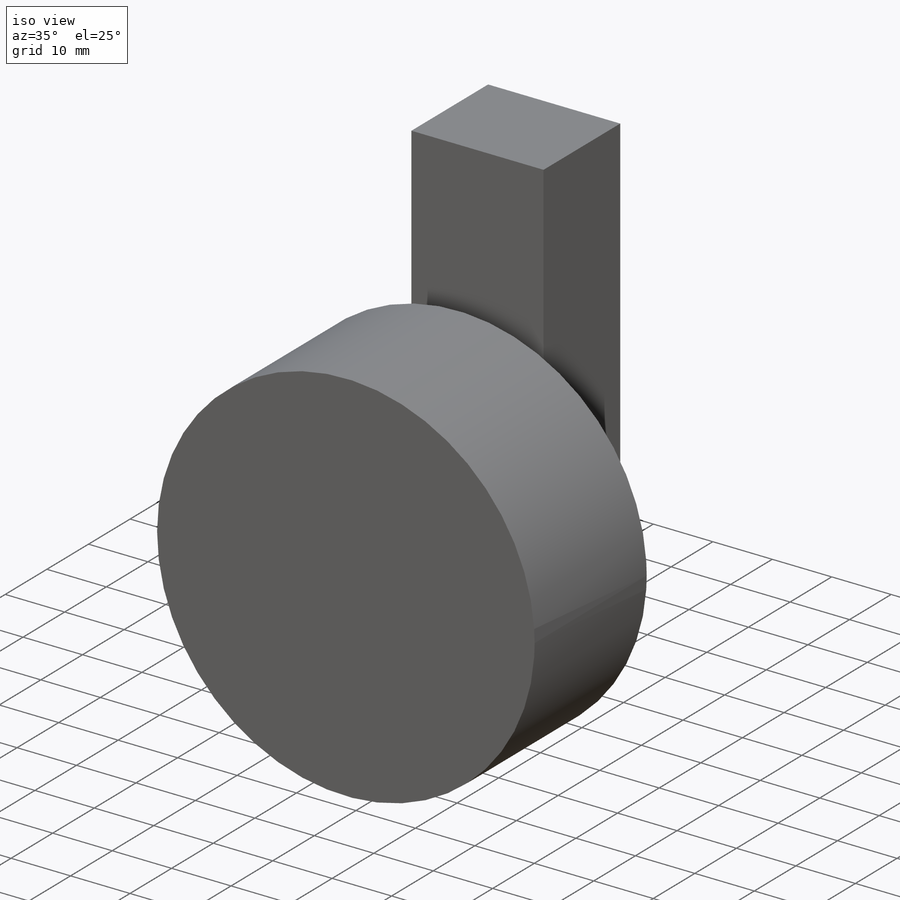
[diagram: iso view]
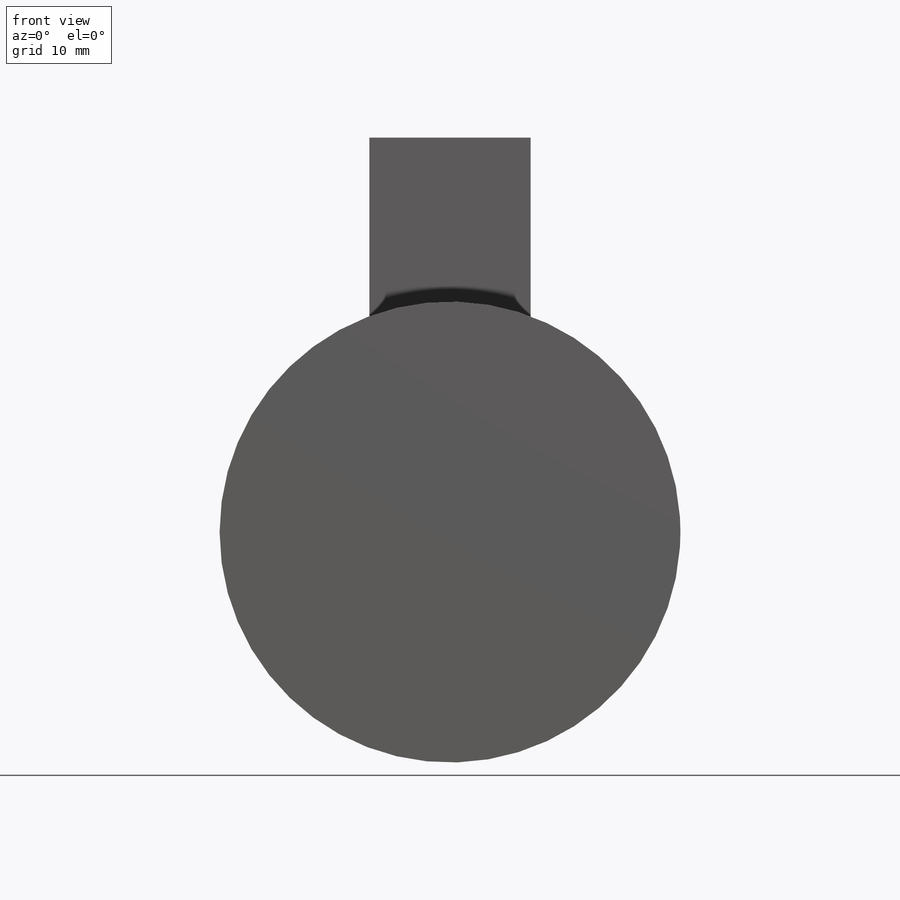
[diagram: front view]
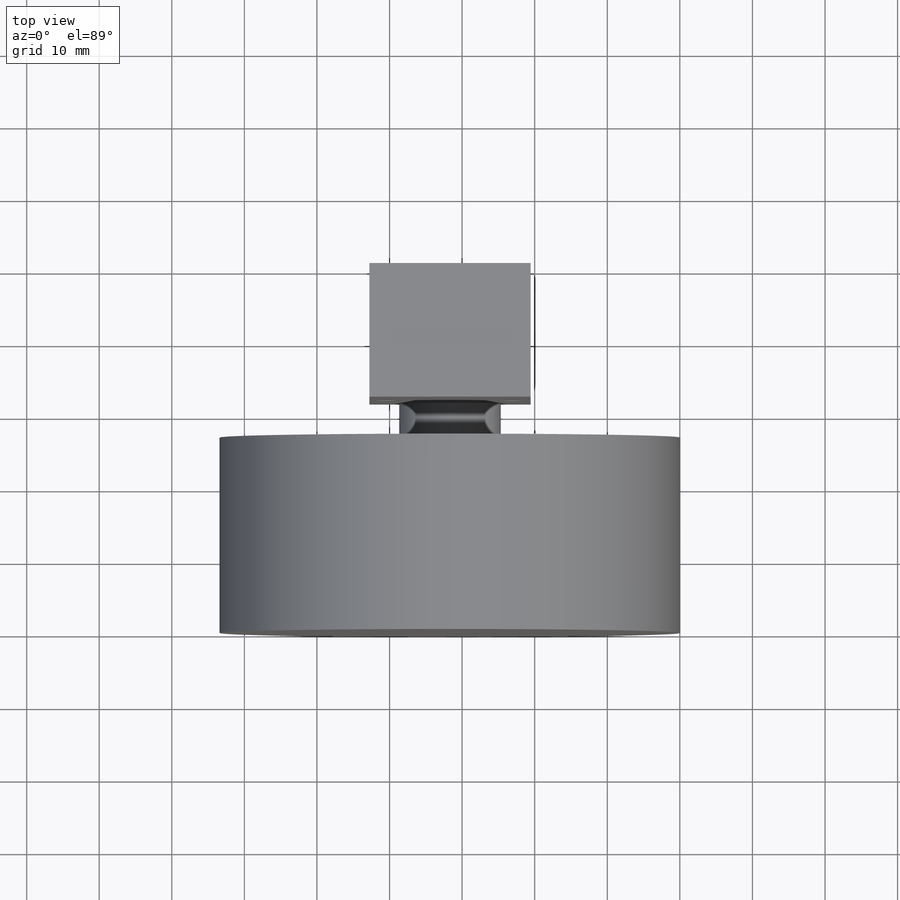
[diagram: top view]
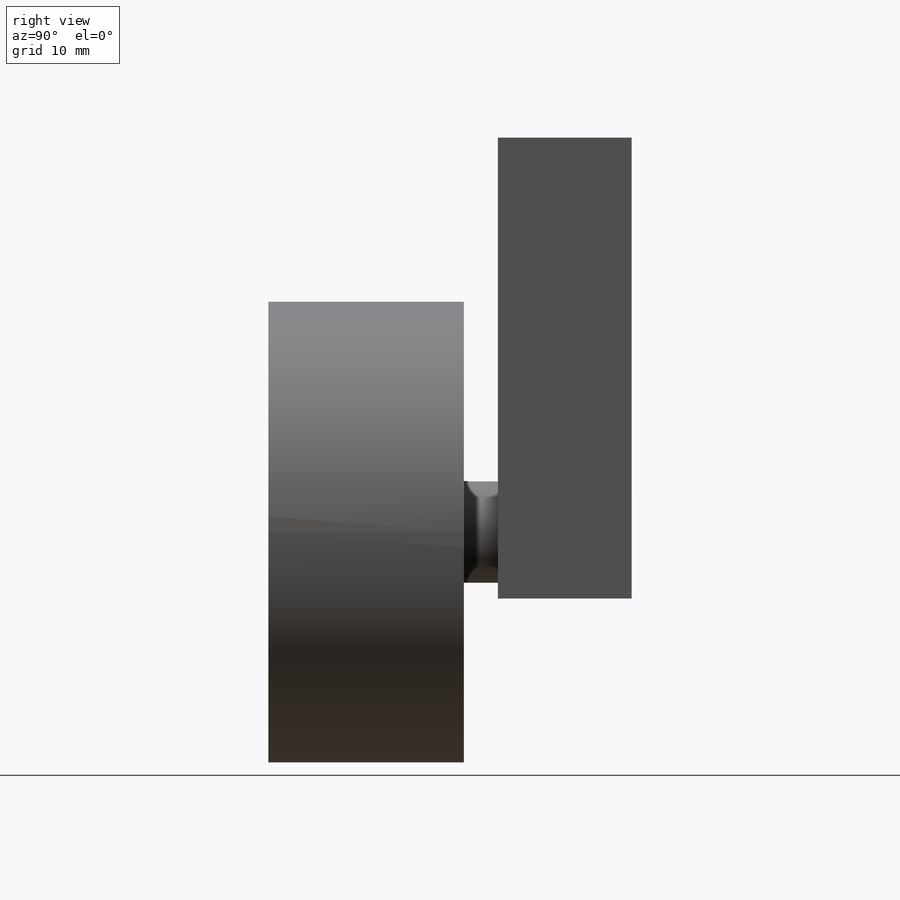
[diagram: right view]
SOLIDWORKS PART (.sldprt)
format: sldprt  version: not decoded by parser v0  size: 142,336 bytes
history: native  units: mm
features: sketch x3, extrude x3, material x1 (+13 scaffold rows collapsed)
feature tree (20):
  scaffold x13  (default folders/planes/origin — collapsed)
  material  "Material <not specified>"
  sketch  "Sketch1"  dims[D3=3.175mm D4=3.175mm D1=63.5mm D2=22.225mm D5=17.399mm D6=2.413mm D7=31.75mm]
  extrude  "Boss-Extrude1"  Depth=18.415mm
  sketch  "Sketch2"  dims[D3=13.97mm D1=11.1125mm D2=9.144mm]
  extrude  "Boss-Extrude2"  Depth=4.699mm
  sketch  "Sketch3"  dims[D1=63.5mm]
  extrude  "Boss-Extrude3"  Depth=26.924mm
decode coverage: 6 of 6 modeling features carry decoded parameters
note: suppression state not decoded; provenance and decode notes live in map.json
